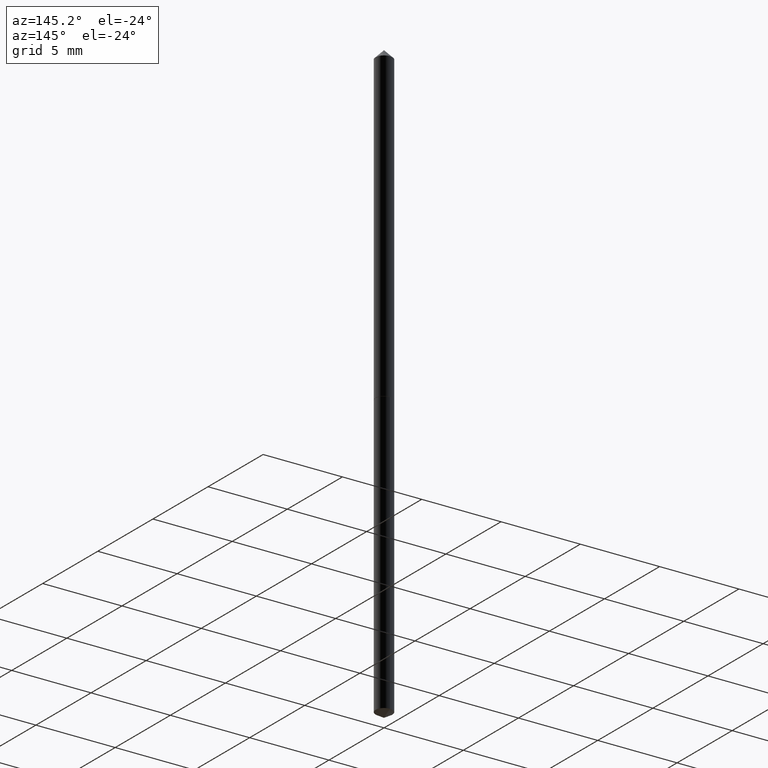
[diagram: clean part render]
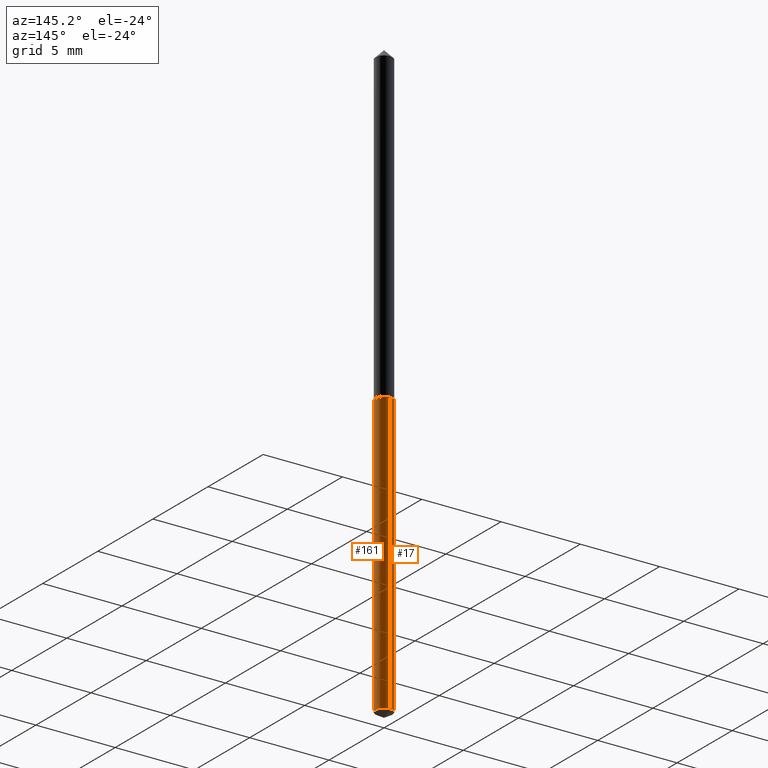
[diagram: same view with one multi-face feature highlighted, each face labeled with its STEP entity id]
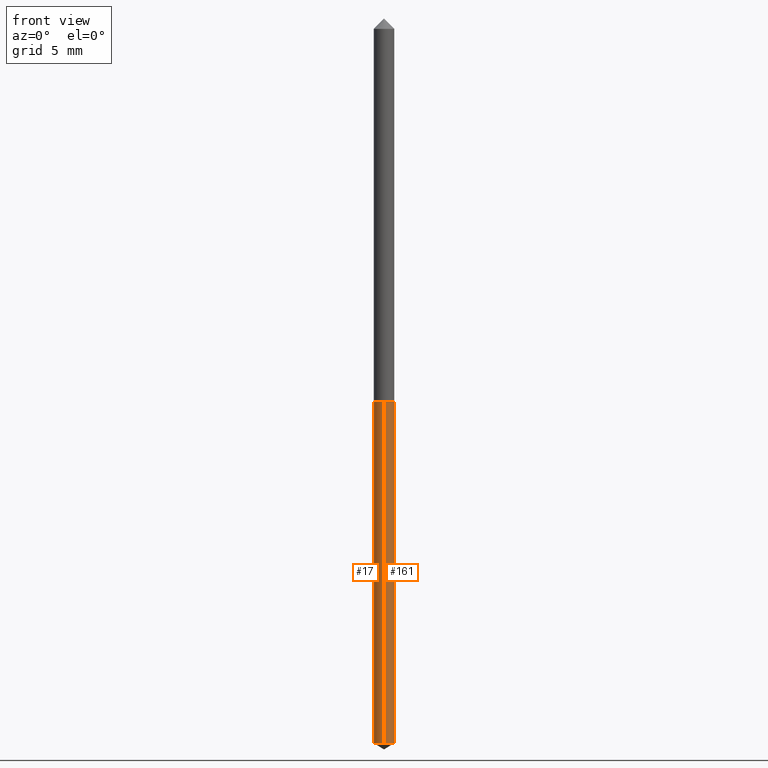
[diagram: same view with one multi-face feature highlighted, each face labeled with its STEP entity id]
A machine part, auxiliary view. The highlighted faces form ONE feature: a constant-radius fillet chain: 2 tangent blend faces with common blend radius 0.5334 mm. The faces share edges in the B-rep.
A second angle (front view) of the same feature is appended — it is thin or edge-on in the first view.
Their STEP definitions:
[1] entity #161 (Cylinder):
#23 = CARTESIAN_POINT ( 'NONE',  ( -1.466422162313922235E-16, -0.02100000000000276992, -0.7920000000000000373 ) ) ;
#32 = DIRECTION ( 'NONE',  ( -2.445556924362238958E-29, 3.491355148598159938E-15, 1.000000000000000000 ) ) ;
#58 = DIRECTION ( 'NONE',  ( -6.982962677686265133E-15, -1.000000000000000000, 0.000000000000000000 ) ) ;
#76 = EDGE_CURVE ( 'NONE', #348, #165, #326, .T. ) ;
#92 = EDGE_CURVE ( 'NONE', #348, #238, #233, .T. ) ;
#101 = ORIENTED_EDGE ( 'NONE', *, *, #92, .T. ) ;
#103 = VECTOR ( 'NONE', #113, 39.37007874015748143 ) ;
#113 = DIRECTION ( 'NONE',  ( -2.445556924362238958E-29, 3.491355148598159543E-15, 1.000000000000000000 ) ) ;
#116 = DIRECTION ( 'NONE',  ( -2.445556924362238958E-29, 3.491355148598159543E-15, 1.000000000000000000 ) ) ;
#127 = CARTESIAN_POINT ( 'NONE',  ( 1.492139745096575085E-16, 0.02099999999999723616, -0.7920000000000003704 ) ) ;
#139 = CARTESIAN_POINT ( 'NONE',  ( 1.492139745096404000E-16, 0.02099999999999723616, -0.7920000000000003704 ) ) ;
#155 = VERTEX_POINT ( 'NONE', #127 ) ;
#161 = ADVANCED_FACE ( 'NONE', ( #352 ), #342, .T. ) ;
#164 = VECTOR ( 'NONE', #116, 39.37007874015748143 ) ;
#165 = VERTEX_POINT ( 'NONE', #180 ) ;
#166 = DIRECTION ( 'NONE',  ( -6.982962677686265133E-15, -1.000000000000000000, 6.504399984914910847E-15 ) ) ;
#180 = CARTESIAN_POINT ( 'NONE',  ( -1.466422162313922235E-16, -0.02100000000000276992, -0.7920000000000000373 ) ) ;
#182 = ORIENTED_EDGE ( 'NONE', *, *, #268, .F. ) ;
#183 = DIRECTION ( 'NONE',  ( -2.445556924362238958E-29, 3.491355148598159938E-15, 1.000000000000000000 ) ) ;
#184 = CIRCLE ( 'NONE', #205, 0.02100000000000000477 ) ;
#193 = CARTESIAN_POINT ( 'NONE',  ( -1.466422162313752630E-16, -0.02100000000000519854, -1.487381927000421600 ) ) ;
#195 = LINE ( 'NONE', #139, #103 ) ;
#205 = AXIS2_PLACEMENT_3D ( 'NONE', #298, #183, #166 ) ;
#213 = CARTESIAN_POINT ( 'NONE',  ( 1.936811294498628434E-29, -2.765253220363771699E-15, -0.7920000000000001483 ) ) ;
#233 = CIRCLE ( 'NONE', #270, 0.02100000000000000477 ) ;
#238 = VERTEX_POINT ( 'NONE', #266 ) ;
#239 = EDGE_LOOP ( 'NONE', ( #101, #289, #182, #336 ) ) ;
#256 = DIRECTION ( 'NONE',  ( -6.982962677686265133E-15, -1.000000000000000000, 6.504399984914910847E-15 ) ) ;
#257 = EDGE_CURVE ( 'NONE', #238, #155, #195, .T. ) ;
#266 = CARTESIAN_POINT ( 'NONE',  ( 1.492139745096574345E-16, 0.02099999999999481101, -1.487381927000421600 ) ) ;
#268 = EDGE_CURVE ( 'NONE', #165, #155, #184, .T. ) ;
#270 = AXIS2_PLACEMENT_3D ( 'NONE', #331, #302, #58 ) ;
#289 = ORIENTED_EDGE ( 'NONE', *, *, #257, .T. ) ;
#298 = CARTESIAN_POINT ( 'NONE',  ( 1.936811294498628434E-29, -2.765253220363771699E-15, -0.7920000000000001483 ) ) ;
#302 = DIRECTION ( 'NONE',  ( -2.445556924362238958E-29, 3.491355148598159938E-15, 1.000000000000000000 ) ) ;
#322 = AXIS2_PLACEMENT_3D ( 'NONE', #213, #32, #256 ) ;
#326 = LINE ( 'NONE', #23, #164 ) ;
#331 = CARTESIAN_POINT ( 'NONE',  ( 3.637407381150866081E-29, -5.193078491438802462E-15, -1.487381927000421600 ) ) ;
#336 = ORIENTED_EDGE ( 'NONE', *, *, #76, .F. ) ;
#342 = CYLINDRICAL_SURFACE ( 'NONE', #322, 0.02100000000000000477 ) ;
#348 = VERTEX_POINT ( 'NONE', #193 ) ;
#352 = FACE_OUTER_BOUND ( 'NONE', #239, .T. ) ;
[2] entity #17 (Cylinder):
#10 = ORIENTED_EDGE ( 'NONE', *, *, #257, .F. ) ;
#11 = ORIENTED_EDGE ( 'NONE', *, *, #76, .T. ) ;
#17 = ADVANCED_FACE ( 'NONE', ( #141 ), #248, .T. ) ;
#20 = DIRECTION ( 'NONE',  ( -2.445556924362238958E-29, 3.491355148598159938E-15, 1.000000000000000000 ) ) ;
#22 = CARTESIAN_POINT ( 'NONE',  ( 1.936811294498628434E-29, -2.765253220363771699E-15, -0.7920000000000001483 ) ) ;
#23 = CARTESIAN_POINT ( 'NONE',  ( -1.466422162313922235E-16, -0.02100000000000276992, -0.7920000000000000373 ) ) ;
#33 = CIRCLE ( 'NONE', #226, 0.02100000000000000477 ) ;
#64 = ORIENTED_EDGE ( 'NONE', *, *, #204, .T. ) ;
#76 = EDGE_CURVE ( 'NONE', #348, #165, #326, .T. ) ;
#80 = DIRECTION ( 'NONE',  ( -2.445556924362238958E-29, 3.491355148598159938E-15, 1.000000000000000000 ) ) ;
#103 = VECTOR ( 'NONE', #113, 39.37007874015748143 ) ;
#110 = DIRECTION ( 'NONE',  ( -6.982962677686265133E-15, -1.000000000000000000, 6.504399984914910847E-15 ) ) ;
#113 = DIRECTION ( 'NONE',  ( -2.445556924362238958E-29, 3.491355148598159543E-15, 1.000000000000000000 ) ) ;
#116 = DIRECTION ( 'NONE',  ( -2.445556924362238958E-29, 3.491355148598159543E-15, 1.000000000000000000 ) ) ;
#121 = CARTESIAN_POINT ( 'NONE',  ( 3.637407381150866081E-29, -5.193078491438802462E-15, -1.487381927000421600 ) ) ;
#127 = CARTESIAN_POINT ( 'NONE',  ( 1.492139745096575085E-16, 0.02099999999999723616, -0.7920000000000003704 ) ) ;
#132 = ORIENTED_EDGE ( 'NONE', *, *, #313, .F. ) ;
#139 = CARTESIAN_POINT ( 'NONE',  ( 1.492139745096404000E-16, 0.02099999999999723616, -0.7920000000000003704 ) ) ;
#141 = FACE_OUTER_BOUND ( 'NONE', #211, .T. ) ;
#149 = DIRECTION ( 'NONE',  ( -6.982962677686265133E-15, -1.000000000000000000, 0.000000000000000000 ) ) ;
#155 = VERTEX_POINT ( 'NONE', #127 ) ;
#164 = VECTOR ( 'NONE', #116, 39.37007874015748143 ) ;
#165 = VERTEX_POINT ( 'NONE', #180 ) ;
#167 = CARTESIAN_POINT ( 'NONE',  ( 1.936811294498628434E-29, -2.765253220363771699E-15, -0.7920000000000001483 ) ) ;
#170 = AXIS2_PLACEMENT_3D ( 'NONE', #121, #332, #149 ) ;
#180 = CARTESIAN_POINT ( 'NONE',  ( -1.466422162313922235E-16, -0.02100000000000276992, -0.7920000000000000373 ) ) ;
#193 = CARTESIAN_POINT ( 'NONE',  ( -1.466422162313752630E-16, -0.02100000000000519854, -1.487381927000421600 ) ) ;
#195 = LINE ( 'NONE', #139, #103 ) ;
#204 = EDGE_CURVE ( 'NONE', #238, #348, #361, .T. ) ;
#211 = EDGE_LOOP ( 'NONE', ( #10, #64, #11, #132 ) ) ;
#226 = AXIS2_PLACEMENT_3D ( 'NONE', #22, #80, #276 ) ;
#238 = VERTEX_POINT ( 'NONE', #266 ) ;
#248 = CYLINDRICAL_SURFACE ( 'NONE', #340, 0.02100000000000000477 ) ;
#257 = EDGE_CURVE ( 'NONE', #238, #155, #195, .T. ) ;
#266 = CARTESIAN_POINT ( 'NONE',  ( 1.492139745096574345E-16, 0.02099999999999481101, -1.487381927000421600 ) ) ;
#276 = DIRECTION ( 'NONE',  ( -6.982962677686265133E-15, -1.000000000000000000, 6.504399984914910847E-15 ) ) ;
#313 = EDGE_CURVE ( 'NONE', #155, #165, #33, .T. ) ;
#326 = LINE ( 'NONE', #23, #164 ) ;
#332 = DIRECTION ( 'NONE',  ( -2.445556924362238958E-29, 3.491355148598159938E-15, 1.000000000000000000 ) ) ;
#340 = AXIS2_PLACEMENT_3D ( 'NONE', #167, #20, #110 ) ;
#348 = VERTEX_POINT ( 'NONE', #193 ) ;
#361 = CIRCLE ( 'NONE', #170, 0.02100000000000000477 ) ;